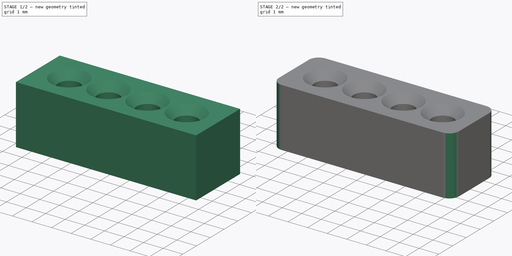
[diagram: build sequence overview — one tinted view per stage of 2, left to right]
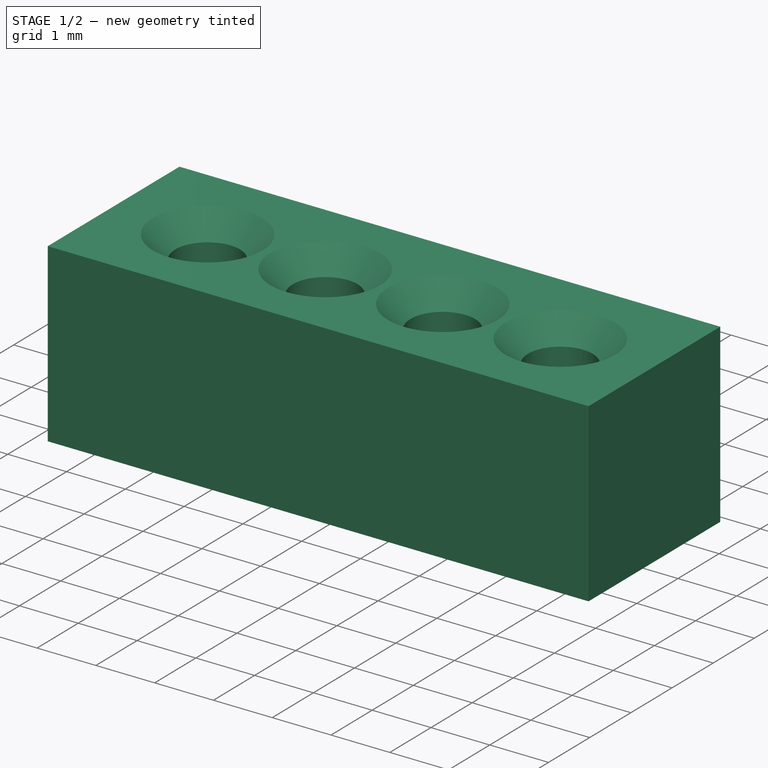
[diagram: stage 1 of 2 — iso view after this stage's code; geometry added in this stage tinted green]
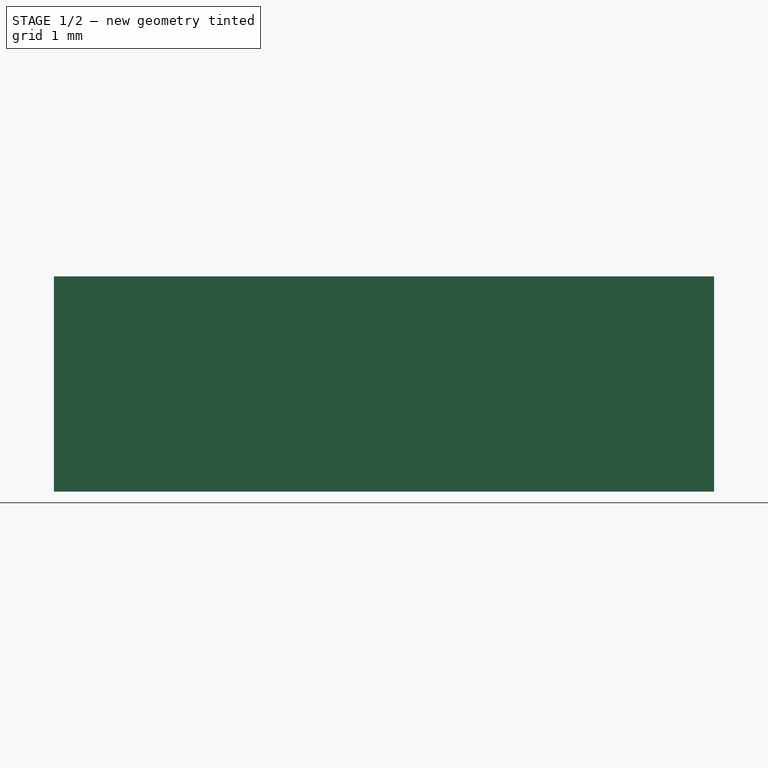
[diagram: stage 1 of 2 — front view after this stage's code; geometry added in this stage tinted green]
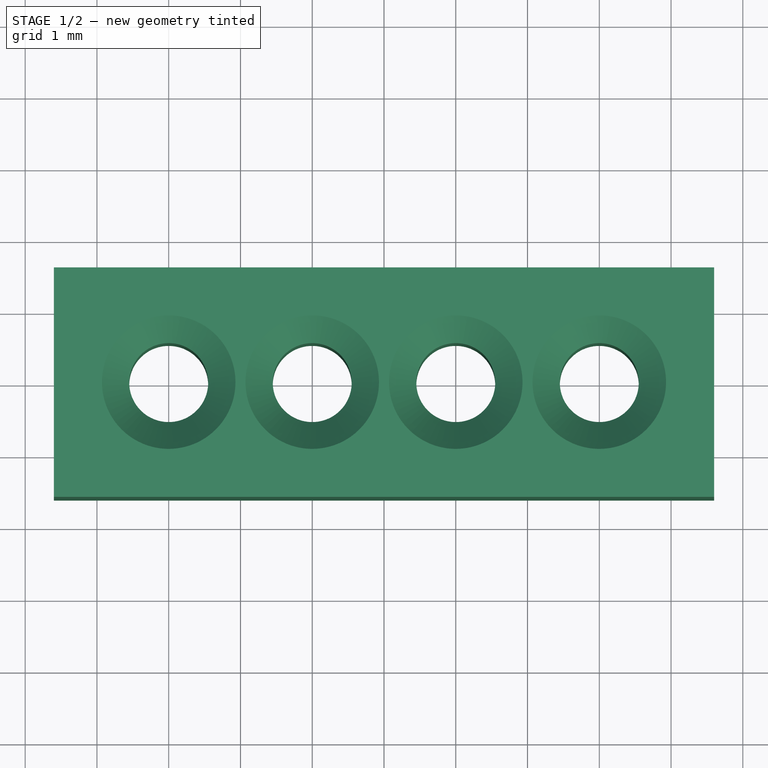
[diagram: stage 1 of 2 — top view after this stage's code; geometry added in this stage tinted green]
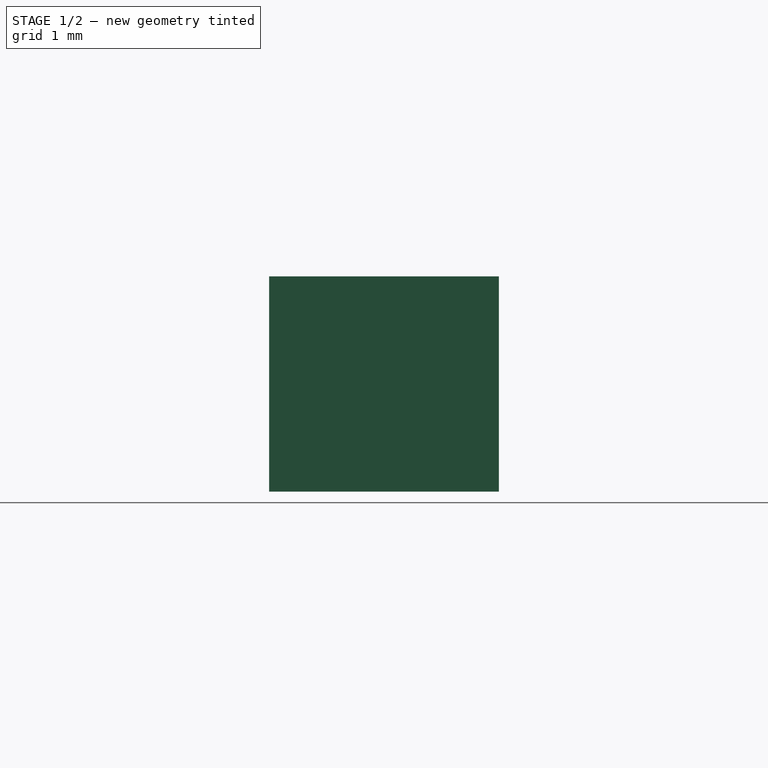
[diagram: stage 1 of 2 — right view after this stage's code; geometry added in this stage tinted green]
FCSTD DOCUMENT  (FreeCAD 0.20R29177 (Git))
Label: 2mm_pin_spacer
License: All rights reserved
LicenseURL: http://en.wikipedia.org/wiki/All_rights_reserved
objects: Sketcher::SketchObject×1, PartDesign::Pad×1, PartDesign::Chamfer×1, PartDesign::Fillet×1, PartDesign::Body×1
note: 8 computed .brp shape members not serialized (recipe doc carries the construction recipe); baked Part::Feature solids carry a one-line shape summary decoded from their .brp

FEATURE [Sketcher::SketchObject] Sketch
  FullyConstrained = true
  MapMode = 5
  Support = -> [XY_Plane]
  sketch-geometry (15):
    g0: LineSegment StartX=-4.6 StartY=1.6 StartZ=0 EndX=4.6 EndY=1.6 EndZ=0
    g1: LineSegment StartX=4.6 StartY=1.6 StartZ=0 EndX=4.6 EndY=-1.6 EndZ=0
    g2: LineSegment StartX=4.6 StartY=-1.6 StartZ=0 EndX=-4.6 EndY=-1.6 EndZ=0
    g3: LineSegment StartX=-4.6 StartY=-1.6 StartZ=0 EndX=-4.6 EndY=1.6 EndZ=0
    g4: Circle CenterX=-3 CenterY=-8.2e-15 CenterZ=0 NormalX=0 NormalY=0 NormalZ=1 AngleXU=0 Radius=0.55
    g5: Circle CenterX=-1 CenterY=-8.2e-15 CenterZ=0 NormalX=0 NormalY=0 NormalZ=1 AngleXU=0 Radius=0.55
    g6: Circle CenterX=1 CenterY=-8.2e-15 CenterZ=0 NormalX=0 NormalY=0 NormalZ=1 AngleXU=0 Radius=0.55
    g7: Circle CenterX=3 CenterY=-8.2e-15 CenterZ=0 NormalX=0 NormalY=0 NormalZ=1 AngleXU=0 Radius=0.55
    g8: LineSegment StartX=-3 StartY=-8.2e-15 StartZ=0 EndX=-1 EndY=-8.2e-15 EndZ=0
    g9: LineSegment StartX=-1 StartY=-8.2e-15 StartZ=0 EndX=1 EndY=-8.2e-15 EndZ=0
    g10: LineSegment StartX=1 StartY=-8.2e-15 StartZ=0 EndX=3 EndY=-8.2e-15 EndZ=0
    g11: LineSegment StartX=-3 StartY=-8.2e-15 StartZ=0 EndX=-4.6 EndY=-8.2e-15 EndZ=0
    g12: LineSegment StartX=3 StartY=-8.2e-15 StartZ=0 EndX=4.6 EndY=-8.2e-15 EndZ=0
    g13: LineSegment StartX=3 StartY=-8.2e-15 StartZ=0 EndX=3 EndY=1.6 EndZ=0
    g14: LineSegment StartX=3 StartY=-8.2e-15 StartZ=0 EndX=3 EndY=-1.6 EndZ=0
  constraints (41):
    c: Coincident(g0,g1)
    c: Coincident(g1,g2)
    c: Coincident(g2,g3)
    c: Coincident(g3,g0)
    c: Horizontal(g0)
    c: Horizontal(g2)
    c: Vertical(g1)
    c: Vertical(g3)
    c: Equal(g4,g5)
    c: Equal(g5,g6)
    c: Equal(g6,g7)
    c: Radius(g4) = 0.55
    c: Coincident(g8,g4)
    c: Horizontal(g8)
    c: Coincident(g9,g8)
    c: Horizontal(g9)
    c: Coincident(g10,g9)
    c: Horizontal(g10)
    c: Equal(g8,g9)
    c: Equal(g9,g10)
    c: Coincident(g5,g8)
    c: Coincident(g6,g9)
    c: Coincident(g7,g10)
    c: DistanceX(g8,g8) = 2
    c: Coincident(g11,g4)
    c: PointOnObject(g11,g3)
    c: Horizontal(g11)
    c: Coincident(g12,g7)
    c: PointOnObject(g12,g1)
    c: Horizontal(g12)
    c: Coincident(g13,g7)
    c: PointOnObject(g13,g0)
    c: Vertical(g13)
    c: Coincident(g14,g7)
    c: PointOnObject(g14,g2)
    c: Vertical(g14)
    c: Equal(g11,g13)
    c: Equal(g13,g12)
    c: Equal(g12,g14)
    c: DistanceX(g11,g11) = 1.6
    c: Symmetric(g11,g12,g-1)
FEATURE [PartDesign::Pad] Pad
  Direction = (0,0,1)
  Length = 3
  Length2 = 10
  Profile = -> Sketch
  ReferenceAxis = -> Sketch [N_Axis]
  Type = 0
FEATURE [PartDesign::Chamfer] Chamfer
  Angle = 45
  Base = -> Pad [Edge24,Edge21,Edge18,Edge15,Edge20,Edge23,Edge17,Edge14]
  BaseFeature = -> Pad
  ChamferType = 0
  FlipDirection = false
  Size = 0.38
  Size2 = 1
  SupportTransform = false
  UseAllEdges = false
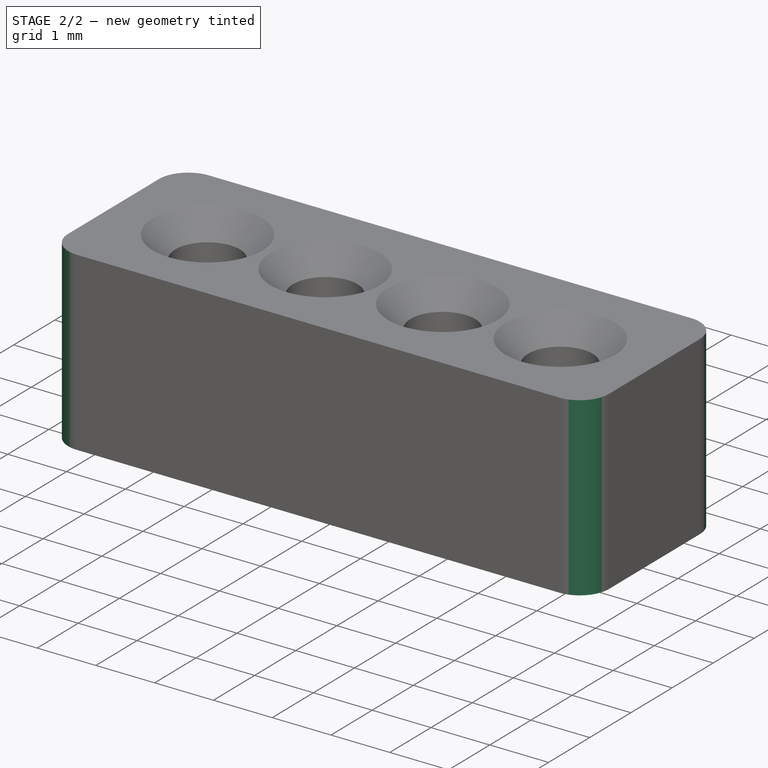
[diagram: stage 2 of 2 — iso view after this stage's code; geometry added in this stage tinted green]
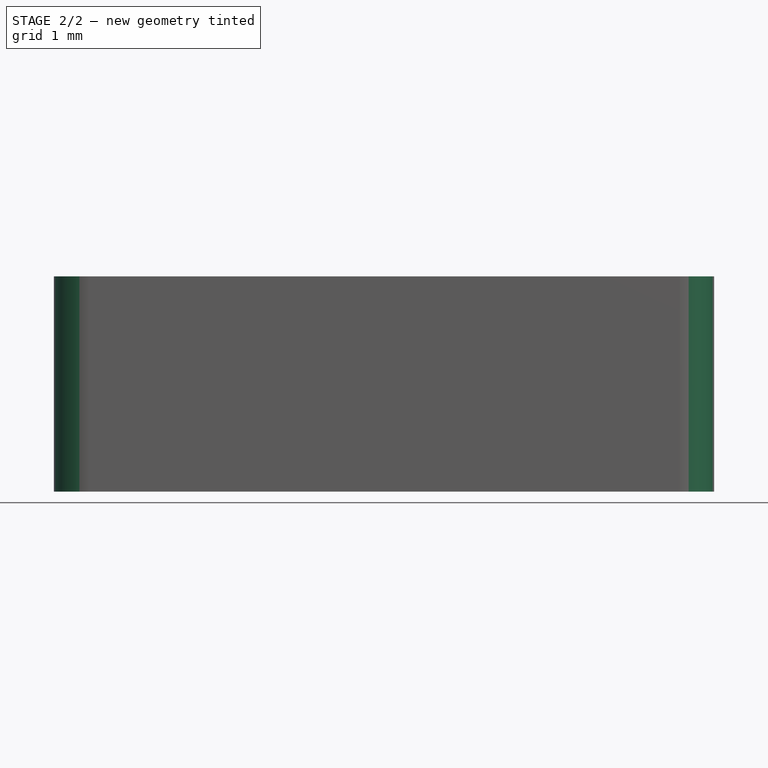
[diagram: stage 2 of 2 — front view after this stage's code; geometry added in this stage tinted green]
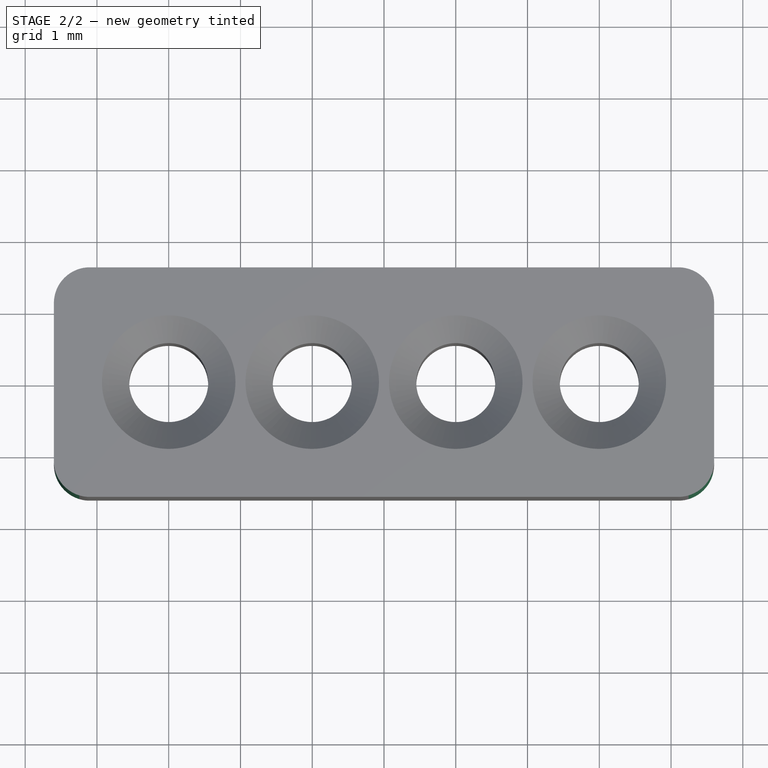
[diagram: stage 2 of 2 — top view after this stage's code; geometry added in this stage tinted green]
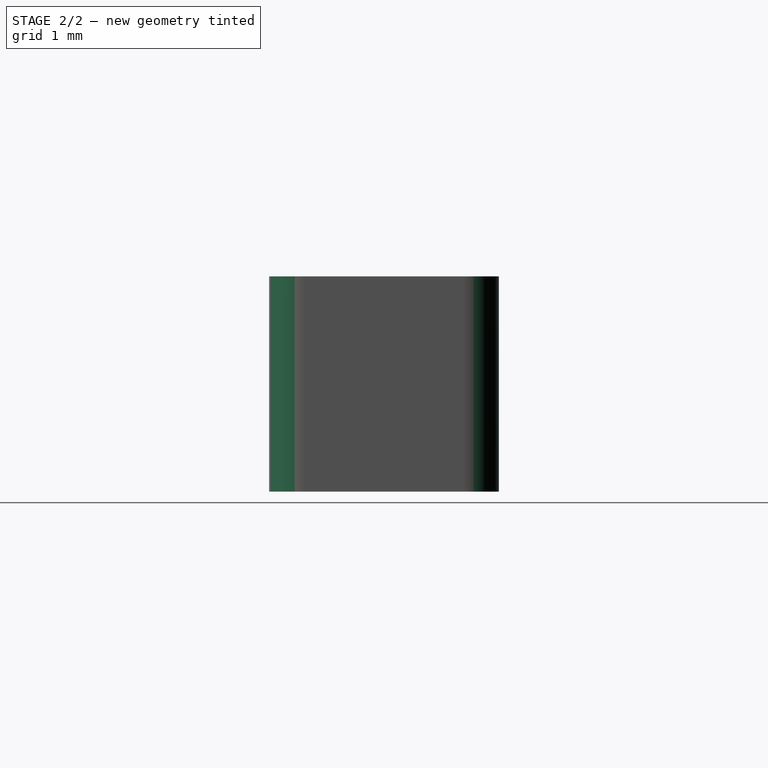
[diagram: stage 2 of 2 — right view after this stage's code; geometry added in this stage tinted green]
FEATURE [PartDesign::Fillet] Fillet
  Base = -> Chamfer [Edge24,Edge27,Edge26,Edge25]
  BaseFeature = -> Chamfer
  Radius = 0.5
  SupportTransform = false
  UseAllEdges = false
FEATURE [PartDesign::Body] Body
  Group = -> [Sketch,Pad,Chamfer,Fillet]
  Origin = -> Origin
  Tip = -> Fillet
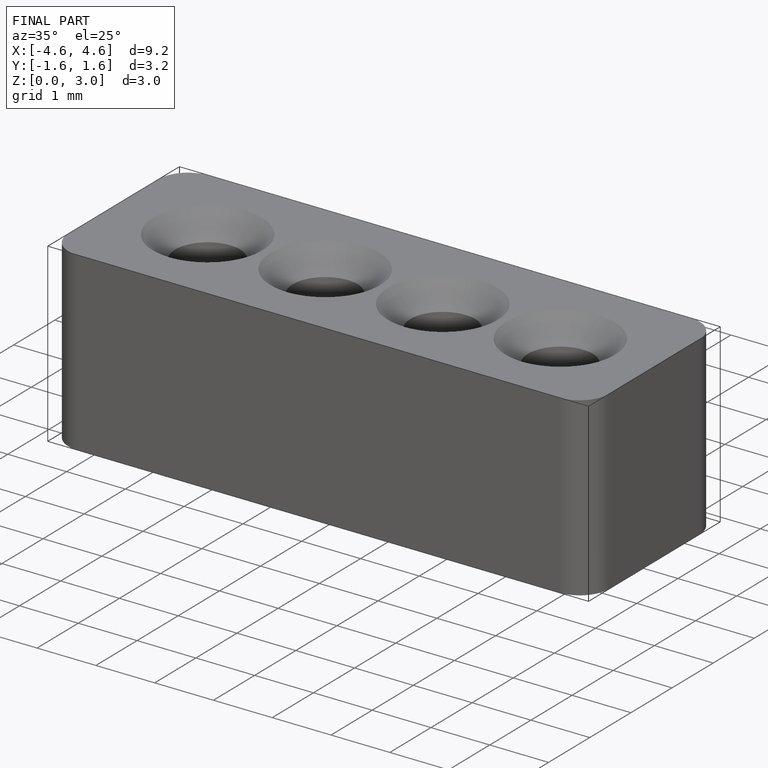
[diagram: finished part — iso view with bounding-box wireframe]
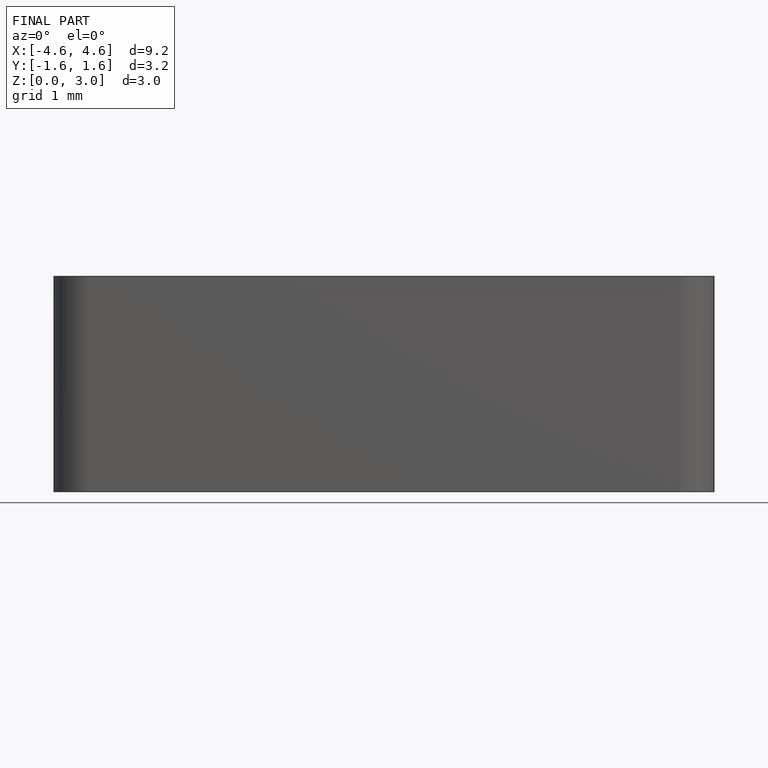
[diagram: finished part — front view with bounding-box wireframe]
